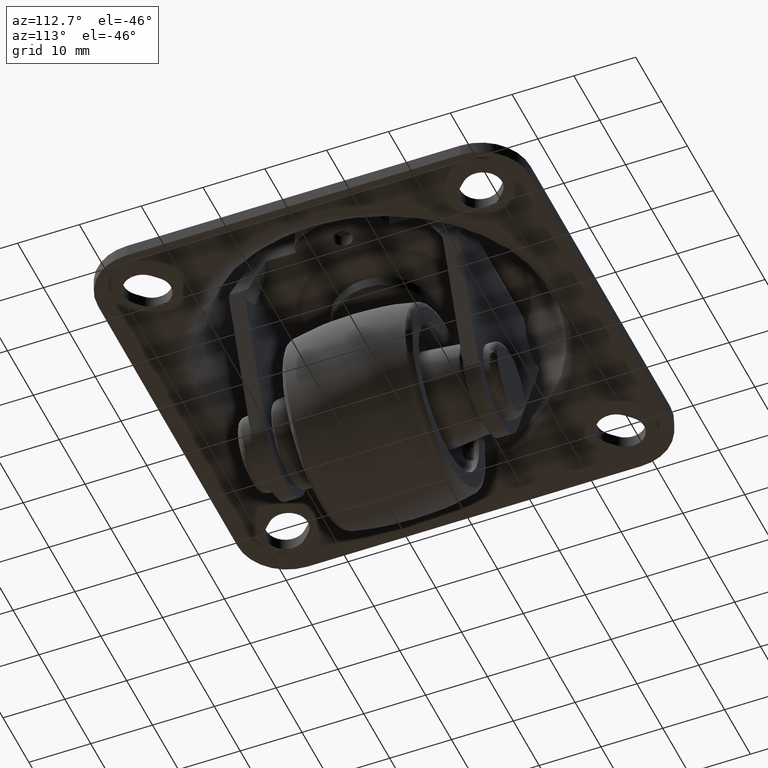
[diagram: clean part render]
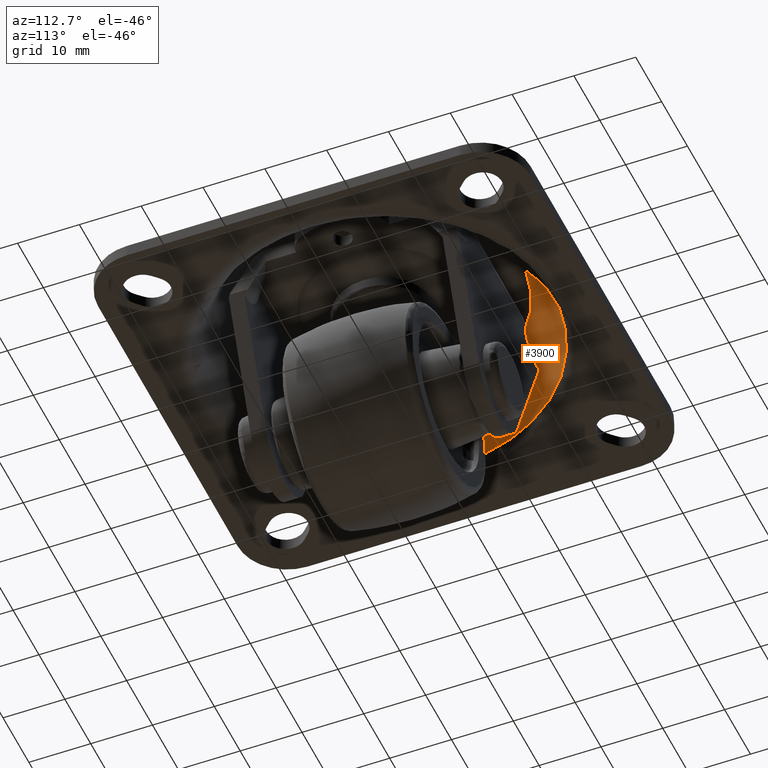
[diagram: same view with one face highlighted and labeled with its STEP entity id]
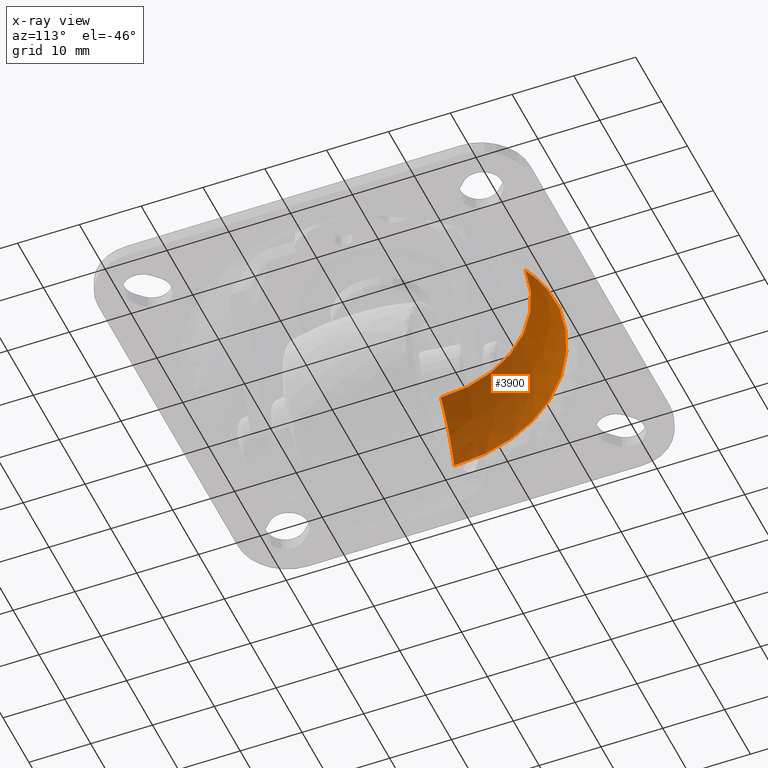
[diagram: x-ray of the same camera — body ghosted, the highlighted face saturated]
A machine part, auxiliary view. The second image highlights one B-rep face of the part: STEP entity #3900.
The next image is the same camera in x-ray: the body ghosted, the highlighted face saturated — about 57% of this face is hidden behind the body in this view.
In plain terms, the highlighted face is a freeform B-spline surface patch.
Its self-contained STEP definition (entity closure, byte-faithful):
#2801=CARTESIAN_POINT('',(-27.237296853164239,0.0,15.477942652900040));
#2802=VERTEX_POINT('',#2801);
#2940=CARTESIAN_POINT('',(-3.144913205751194,27.055121077913491,15.477959111377990));
#2941=VERTEX_POINT('',#2940);
#2957=CARTESIAN_POINT('',(-27.237296853164239,0.0,15.477942652900040));
#2958=CARTESIAN_POINT('',(-27.237346493415892,1.341717821642296,15.477943108110679));
#2959=CARTESIAN_POINT('',(-27.023422284492248,4.231570941446191,15.477944153229590));
#2960=CARTESIAN_POINT('',(-26.018761302147379,8.464545765993844,15.477945892956919));
#2961=CARTESIAN_POINT('',(-24.454168282989531,12.187027712424200,15.477947628653990));
#2962=CARTESIAN_POINT('',(-22.822188833239199,14.945025327692839,15.477949057475371));
#2963=CARTESIAN_POINT('',(-21.116182685163750,17.280407670662751,15.477950365274671));
#2964=CARTESIAN_POINT('',(-18.970736686126202,19.662387051912070,15.477951821653059));
#2965=CARTESIAN_POINT('',(-16.242582540023928,21.965678930868290,15.477953427387311));
#2966=CARTESIAN_POINT('',(-13.278403192375039,23.855523804657299,15.477954964156041));
#2967=CARTESIAN_POINT('',(-10.250067491105430,25.311780594888180,15.477956373198101));
#2968=CARTESIAN_POINT('',(-6.866469678478220,26.445030083740701,15.477957779984189));
#2969=CARTESIAN_POINT('',(-4.426399867177895,26.906213676562420,15.477958673678630));
#2970=CARTESIAN_POINT('',(-3.144913205751194,27.055121077913491,15.477959111377990));
#2971=B_SPLINE_CURVE_WITH_KNOTS('',3,(#2957,#2958,#2959,#2960,#2961,#2962,#2963,#2964,#2965,#2966,#2967,#2968,#2969,#2970),.UNSPECIFIED.,.F.,.U.,(4,1,1,1,1,1,1,1,1,1,1,4),(0.000000037543728,4.025158858384486,8.669576525990440,13.004377276032150,16.100651753305101,18.268068205078361,21.673937782302701,25.699098889819581,28.950192335024060,32.201295381747833,35.762028228889633,39.632352594283027),.UNSPECIFIED.);
#2972=EDGE_CURVE('',#2802,#2941,#2971,.T.);
#3096=CARTESIAN_POINT('',(-21.985739880273389,0.0,25.078345459266870));
#3097=VERTEX_POINT('',#3096);
#3122=CARTESIAN_POINT('',(-2.538535484538983,21.838667381970382,25.078378324513061));
#3123=VERTEX_POINT('',#3122);
#3124=CARTESIAN_POINT('',(-21.985739880273389,0.0,25.078345459266870));
#3125=CARTESIAN_POINT('',(-21.985821702114912,1.207992548641525,25.078346473116891));
#3126=CARTESIAN_POINT('',(-21.820529170810790,3.207389193237076,25.078348274824940));
#3127=CARTESIAN_POINT('',(-21.231854480135969,5.854233394883039,25.078350936404171));
#3128=CARTESIAN_POINT('',(-20.455212704663719,8.188955180096803,25.078353476498719));
#3129=CARTESIAN_POINT('',(-19.329845985219190,10.611982730106311,25.078356351356419));
#3130=CARTESIAN_POINT('',(-17.891488263965929,12.863932759111821,25.078359316558561));
#3131=CARTESIAN_POINT('',(-16.282194352369402,14.834119049978920,25.078362173029131));
#3132=CARTESIAN_POINT('',(-14.592772537655071,16.507880549891201,25.078364840587561));
#3133=CARTESIAN_POINT('',(-12.757143811619301,17.953376261342012,25.078367425833839));
#3134=CARTESIAN_POINT('',(-10.678977593253929,19.270084583215102,25.078370084261120));
#3135=CARTESIAN_POINT('',(-8.427969440674573,20.368342973609330,25.078372688523899));
#3136=CARTESIAN_POINT('',(-5.623975068255740,21.325207580926950,25.078375587419529));
#3137=CARTESIAN_POINT('',(-3.655702834053404,21.708882767756759,25.078377380586989));
#3138=CARTESIAN_POINT('',(-2.538535484538983,21.838667381970382,25.078378324513061));
#3139=B_SPLINE_CURVE_WITH_KNOTS('',3,(#3124,#3125,#3126,#3127,#3128,#3129,#3130,#3131,#3132,#3133,#3134,#3135,#3136,#3137,#3138),.UNSPECIFIED.,.F.,.U.,(4,1,1,1,1,1,1,1,1,1,1,1,4),(0.000000042812918,3.623966117361043,5.998290538631313,8.122698443942891,10.996885015820110,13.996041546818470,16.120399649014580,18.619711290151439,21.119000611499619,23.118444834084741,25.992632331032759,28.616896240993121,31.990931238607821),.UNSPECIFIED.);
#3140=EDGE_CURVE('',#3097,#3123,#3139,.T.);
#3838=CARTESIAN_POINT('',(-27.237296853164239,0.0,15.477942652900040));
#3839=CARTESIAN_POINT('',(-26.665549837660841,0.0,17.282130085074431));
#3840=CARTESIAN_POINT('',(-25.205509266374271,0.0,20.669665728087580));
#3841=CARTESIAN_POINT('',(-23.123183572206798,0.0,23.711891214106409));
#3842=CARTESIAN_POINT('',(-21.985739880273389,0.0,25.078345459266870));
#3843=B_SPLINE_CURVE_WITH_KNOTS('',3,(#3838,#3839,#3840,#3841,#3842),.UNSPECIFIED.,.F.,.U.,(4,1,4),(2.442498E-009,5.677799772738916,11.011501139551241),.UNSPECIFIED.);
#3844=EDGE_CURVE('',#2802,#3097,#3843,.T.);
#3850=CARTESIAN_POINT('',(-3.144913205751194,27.055121077913491,15.477959111377990));
#3851=CARTESIAN_POINT('',(-3.070912035534450,26.418519979313409,17.500924638454229));
#3852=CARTESIAN_POINT('',(-2.897350761309770,24.925437125443249,20.874678081662221));
#3853=CARTESIAN_POINT('',(-2.652916373441633,22.822649385135719,23.888196495996649));
#3854=CARTESIAN_POINT('',(-2.538535484538983,21.838667381970382,25.078378324513061));
#3855=B_SPLINE_CURVE_WITH_KNOTS('',3,(#3850,#3851,#3852,#3853,#3854),.UNSPECIFIED.,.F.,.U.,(4,1,4),(2.443070E-009,6.366037263893797,11.011526631171529),.UNSPECIFIED.);
#3856=EDGE_CURVE('',#2941,#3123,#3855,.T.);
#3861=CARTESIAN_POINT('',(-27.402343765476193,-0.177783827940610,14.938883643795453));
#3862=CARTESIAN_POINT('',(-26.439680785298474,-0.171538161106508,18.198045572950765));
#3863=CARTESIAN_POINT('',(-24.736428890311448,-0.160487623078465,21.138757982569075));
#3864=CARTESIAN_POINT('',(-23.386718687164059,-0.151730830280750,23.469070695248675));
#3865=CARTESIAN_POINT('',(-21.623734373166172,-0.140292753938657,25.504742888887353));
#3866=CARTESIAN_POINT('',(-27.402343765476189,-0.089011517795120,14.938883643795446));
#3867=CARTESIAN_POINT('',(-26.439680785298485,-0.085884482614329,18.198045572950772));
#3868=CARTESIAN_POINT('',(-24.736428890311430,-0.080351779366104,21.138757982569061));
#3869=CARTESIAN_POINT('',(-23.386718687164052,-0.075967491846981,23.469070695248671));
#3870=CARTESIAN_POINT('',(-21.623734373166172,-0.070240758725865,25.504742888887364));
#3871=CARTESIAN_POINT('',(-27.402343765476193,24.401559706363493,14.938883643795455));
#3872=CARTESIAN_POINT('',(-26.439680785298485,23.544316311821909,18.198045572950765));
#3873=CARTESIAN_POINT('',(-24.736428890311434,22.027584634918178,21.138757982569071));
#3874=CARTESIAN_POINT('',(-23.386718687164063,20.825678900493990,23.469070695248682));
#3875=CARTESIAN_POINT('',(-21.623734373166172,19.255756000190789,25.504742888887353));
#3876=CARTESIAN_POINT('',(-3.071558094452055,27.229811492341852,14.938883643795451));
#3877=CARTESIAN_POINT('',(-2.963652168802020,26.273209688304910,18.198045572950765));
#3878=CARTESIAN_POINT('',(-2.772732837604901,24.580681909607975,21.138757982569064));
#3879=CARTESIAN_POINT('',(-2.621442373726224,23.239469832438967,23.469070695248675));
#3880=CARTESIAN_POINT('',(-2.423827571634929,21.487585725554652,25.504742888887353));
#3881=CARTESIAN_POINT('',(-2.979343854792540,27.240530631934632,14.938883643795458));
#3882=CARTESIAN_POINT('',(-2.874677478121424,26.283552257230820,18.198045572950768));
#3883=CARTESIAN_POINT('',(-2.689489922271301,24.590358207247743,21.138757982569071));
#3884=CARTESIAN_POINT('',(-2.542741496884264,23.248618155822186,23.469070695248679));
#3885=CARTESIAN_POINT('',(-2.351059481398316,21.496044411762188,25.504742888887360));
#3893=(BOUNDED_SURFACE()B_SPLINE_SURFACE(2,2,((#3861,#3866,#3871,#3876,#3881),(#3862,#3867,#3872,#3877,#3882),(#3863,#3868,#3873,#3878,#3883),(#3864,#3869,#3874,#3879,#3884),(#3865,#3870,#3875,#3880,#3885)),.UNSPECIFIED.,.F.,.F.,.U.)B_SPLINE_SURFACE_WITH_KNOTS((3,2,3),(3,1,1,3),(0.0,6.916181655976226,12.432387371202150),(0.0,0.208618886636675,41.932357987349867,42.141016033207492),.UNSPECIFIED.)GEOMETRIC_REPRESENTATION_ITEM()RATIONAL_B_SPLINE_SURFACE(((0.954732693339923,0.953449829227188,0.695594377635061,0.912193159246587,0.913270967375424),(0.971513182937320,0.970207771060117,0.707820222941645,0.928225969190494,0.929322720996677),(1.002694620081849,1.001347310040925,0.730538238691624,0.958018071060614,0.959150023930569),(0.977824940489645,0.976511047571300,0.712418811737253,0.934256497004423,0.935360374222404),(0.962116183059013,0.960823397830081,0.700973803700338,0.919247666607762,0.920333810038505)))REPRESENTATION_ITEM('')SURFACE());
#3894=ORIENTED_EDGE('',*,*,#2972,.T.);
#3895=ORIENTED_EDGE('',*,*,#3856,.T.);
#3896=ORIENTED_EDGE('',*,*,#3140,.F.);
#3897=ORIENTED_EDGE('',*,*,#3844,.F.);
#3898=EDGE_LOOP('',(#3894,#3895,#3896,#3897));
#3899=FACE_OUTER_BOUND('',#3898,.T.);
#3900=ADVANCED_FACE('',(#3899),#3893,.F.);